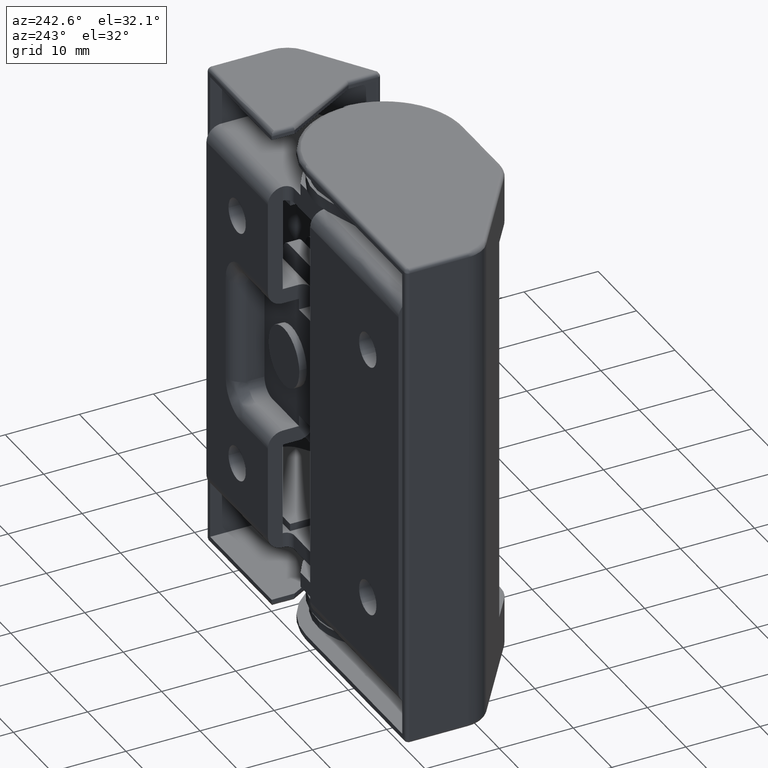
[diagram: clean part render]
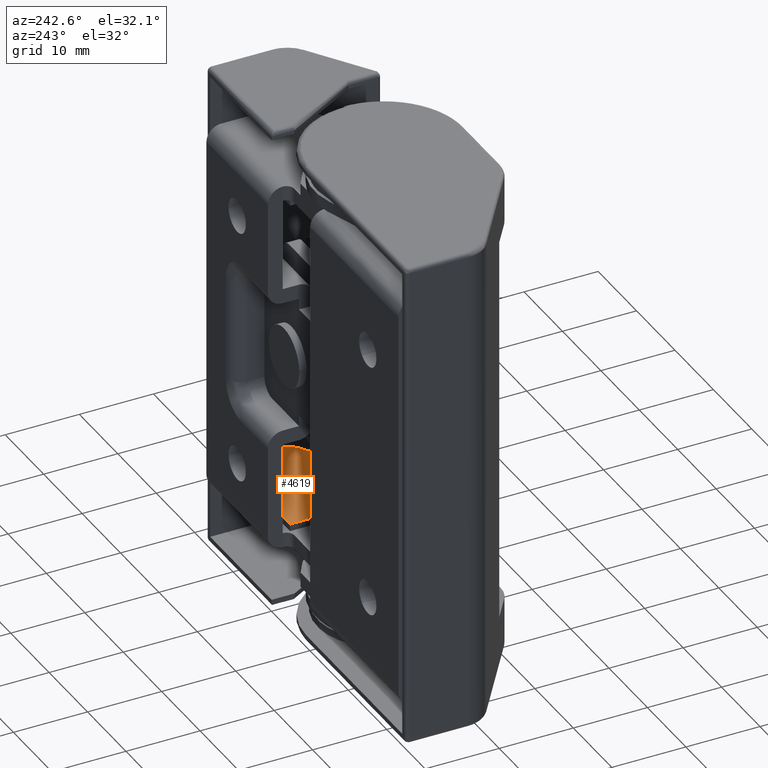
[diagram: same view with one face highlighted and labeled with its STEP entity id]
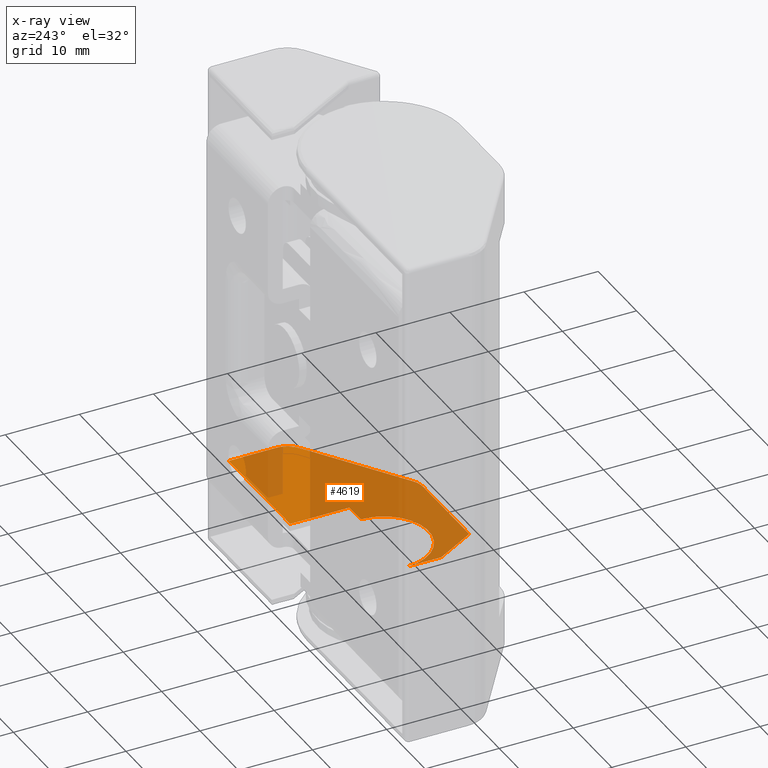
[diagram: x-ray of the same camera — body ghosted, the highlighted face saturated]
A machine part, auxiliary view. The second image highlights one B-rep face of the part: STEP entity #4619.
The next image is the same camera in x-ray: the body ghosted, the highlighted face saturated — about 78% of this face is hidden behind the body in this view.
In plain terms, the highlighted face is a freeform B-spline surface patch.
Its self-contained STEP definition (entity closure, byte-faithful):
#4263=CARTESIAN_POINT('',(-2.886751345948270,-10.000000000002141,11.0));
#4264=VERTEX_POINT('',#4263);
#4270=CARTESIAN_POINT('',(-6.000000000001380,-4.607695154586740,11.0));
#4271=VERTEX_POINT('',#4270);
#4272=CARTESIAN_POINT('',(-2.886751345948270,-10.000000000002141,11.0));
#4273=CARTESIAN_POINT('',(-6.000000000001380,-4.607695154586740,11.0));
#4274=QUASI_UNIFORM_CURVE('',1,(#4272,#4273),.UNSPECIFIED.,.F.,.U.);
#4275=EDGE_CURVE('',#4264,#4271,#4274,.T.);
#4332=CARTESIAN_POINT('',(-6.000000000001380,-7.347638E-016,11.0));
#4333=VERTEX_POINT('',#4332);
#4339=CARTESIAN_POINT('',(5.999999999998620,0.0,11.0));
#4340=VERTEX_POINT('',#4339);
#4341=CARTESIAN_POINT('',(-6.000000000001380,-7.347638E-016,11.0));
#4342=CARTESIAN_POINT('',(-6.000018946884915,-0.343595294055571,11.0));
#4343=CARTESIAN_POINT('',(-5.934507134316537,-1.104447435561617,11.000000000000011));
#4344=CARTESIAN_POINT('',(-5.665421089114768,-2.054139319445492,11.0));
#4345=CARTESIAN_POINT('',(-5.240076025033940,-2.967839806051831,11.0));
#4346=CARTESIAN_POINT('',(-4.656738648494881,-3.852746262832921,11.0));
#4347=CARTESIAN_POINT('',(-3.865623456215885,-4.634192716289061,11.000000000000050));
#4348=CARTESIAN_POINT('',(-2.948933538619309,-5.254790298677482,10.999999999999870));
#4349=CARTESIAN_POINT('',(-2.099810529637234,-5.650061826234797,11.000000000000281));
#4350=CARTESIAN_POINT('',(-1.222203132300316,-5.892875172937856,10.999999999999680));
#4351=CARTESIAN_POINT('',(-0.198833070260764,-6.031971767563624,11.000000000000041));
#4352=CARTESIAN_POINT('',(0.912592809441133,-5.977386253349112,11.000000000000540));
#4353=CARTESIAN_POINT('',(2.054733560386107,-5.668731253736425,10.999999999999121));
#4354=CARTESIAN_POINT('',(3.014593833486496,-5.221946119297532,11.000000000000099));
#4355=CARTESIAN_POINT('',(3.965861518281367,-4.560781711776016,11.000000000001130));
#4356=CARTESIAN_POINT('',(4.761533354489904,-3.714733917671357,10.999999999999540));
#4357=CARTESIAN_POINT('',(5.309335811465456,-2.837597206975266,11.000000000000080));
#4358=CARTESIAN_POINT('',(5.678059588614222,-2.005820878645588,11.000000000000130));
#4359=CARTESIAN_POINT('',(5.934283779372364,-1.079889720412158,10.999999999999609));
#4360=CARTESIAN_POINT('',(6.000041510622296,-0.368146140469203,11.000000000000220));
#4361=CARTESIAN_POINT('',(5.999999999998620,0.0,11.0));
#4362=B_SPLINE_CURVE_WITH_KNOTS('',3,(#4341,#4342,#4343,#4344,#4345,#4346,#4347,#4348,#4349,#4350,#4351,#4352,#4353,#4354,#4355,#4356,#4357,#4358,#4359,#4360,#4361),.UNSPECIFIED.,.F.,.U.,(4,1,1,1,1,1,1,1,1,1,1,1,1,1,1,1,1,1,4),(0.000000020155657,1.030795814829951,2.282548786442028,2.945245528992645,4.049729888910262,5.448742625756310,6.258702070684723,7.363157086495994,8.246760066137568,8.983057460358715,10.455637556366600,11.560129880992820,12.517342707892430,13.621829213661719,15.020838812067110,15.978068013128000,16.714390231040650,17.745237594670542,18.849674194573161),.UNSPECIFIED.);
#4363=EDGE_CURVE('',#4333,#4340,#4362,.T.);
#4386=CARTESIAN_POINT('',(8.999999999998851,0.0,11.0));
#4387=VERTEX_POINT('',#4386);
#4388=CARTESIAN_POINT('',(8.999999999998851,0.0,11.0));
#4389=CARTESIAN_POINT('',(5.999999999998620,0.0,11.0));
#4390=QUASI_UNIFORM_CURVE('',1,(#4388,#4389),.UNSPECIFIED.,.F.,.U.);
#4391=EDGE_CURVE('',#4387,#4340,#4390,.T.);
#4414=CARTESIAN_POINT('',(8.999999999998851,8.0,11.0));
#4415=VERTEX_POINT('',#4414);
#4416=CARTESIAN_POINT('',(8.999999999998851,8.0,11.0));
#4417=CARTESIAN_POINT('',(8.999999999998851,0.0,11.0));
#4418=QUASI_UNIFORM_CURVE('',1,(#4416,#4417),.UNSPECIFIED.,.F.,.U.);
#4419=EDGE_CURVE('',#4415,#4387,#4418,.T.);
#4442=CARTESIAN_POINT('',(24.999999999999101,8.0,11.0));
#4443=VERTEX_POINT('',#4442);
#4444=CARTESIAN_POINT('',(24.999999999999101,8.0,11.0));
#4445=CARTESIAN_POINT('',(8.999999999998851,8.0,11.0));
#4446=QUASI_UNIFORM_CURVE('',1,(#4444,#4445),.UNSPECIFIED.,.F.,.U.);
#4447=EDGE_CURVE('',#4443,#4415,#4446,.T.);
#4553=CARTESIAN_POINT('',(-7.548449939917391,8.899099965112621,11.0));
#4554=CARTESIAN_POINT('',(26.548450771399899,8.899099965112621,11.0));
#4555=CARTESIAN_POINT('',(-7.548449939917390,-10.899100447912501,11.0));
#4556=CARTESIAN_POINT('',(26.548450771399899,-10.899100447912501,11.0));
#4557=B_SPLINE_SURFACE_WITH_KNOTS('',1,1,((#4553,#4555),(#4554,#4556)),.UNSPECIFIED.,.F.,.F.,.U.,(2,2),(2,2),(0.0,34.096900711317303),(0.0,19.798200413025128),.UNSPECIFIED.);
#4558=CARTESIAN_POINT('',(-6.000000000001380,-4.607695154586740,11.0));
#4559=CARTESIAN_POINT('',(-6.000000000001380,-7.347638E-016,11.0));
#4560=QUASI_UNIFORM_CURVE('',1,(#4558,#4559),.UNSPECIFIED.,.F.,.U.);
#4561=EDGE_CURVE('',#4271,#4333,#4560,.T.);
#4562=ORIENTED_EDGE('',*,*,#4561,.F.);
#4563=ORIENTED_EDGE('',*,*,#4275,.F.);
#4564=CARTESIAN_POINT('',(9.091673086802739,-10.000000000002260,11.000000000000121));
#4565=VERTEX_POINT('',#4564);
#4566=CARTESIAN_POINT('',(-2.886751345948270,-10.000000000002141,11.0));
#4567=CARTESIAN_POINT('',(9.091673086802739,-10.000000000002260,11.000000000000121));
#4568=QUASI_UNIFORM_CURVE('',1,(#4566,#4567),.UNSPECIFIED.,.F.,.U.);
#4569=EDGE_CURVE('',#4264,#4565,#4568,.T.);
#4570=ORIENTED_EDGE('',*,*,#4569,.T.);
#4571=CARTESIAN_POINT('',(10.755773675478441,-9.496150883015741,11.000000000000121));
#4572=VERTEX_POINT('',#4571);
#4573=CARTESIAN_POINT('',(9.091673086802739,-10.000000000002260,11.000000000000121));
#4574=CARTESIAN_POINT('',(9.999999999998728,-10.000000000002210,11.0));
#4575=CARTESIAN_POINT('',(10.755773675478430,-9.496150883015728,11.0));
#4583=(BOUNDED_CURVE()B_SPLINE_CURVE(2,(#4573,#4574,#4575),.UNSPECIFIED.,.F.,.U.)CURVE()GEOMETRIC_REPRESENTATION_ITEM()QUASI_UNIFORM_CURVE()RATIONAL_B_SPLINE_CURVE((1.0,0.957092026489051,1.0))REPRESENTATION_ITEM(''));
#4584=EDGE_CURVE('',#4565,#4572,#4583,.T.);
#4585=ORIENTED_EDGE('',*,*,#4584,.T.);
#4586=CARTESIAN_POINT('',(23.664100588674799,-0.890599607549554,11.000000000000121));
#4587=VERTEX_POINT('',#4586);
#4588=CARTESIAN_POINT('',(10.755773675478441,-9.496150883015741,11.000000000000121));
#4589=CARTESIAN_POINT('',(23.664100588674799,-0.890599607549554,11.000000000000121));
#4590=QUASI_UNIFORM_CURVE('',1,(#4588,#4589),.UNSPECIFIED.,.F.,.U.);
#4591=EDGE_CURVE('',#4572,#4587,#4590,.T.);
#4592=ORIENTED_EDGE('',*,*,#4591,.T.);
#4593=CARTESIAN_POINT('',(24.999999999999101,1.605551275463995,11.000000000000121));
#4594=VERTEX_POINT('',#4593);
#4595=CARTESIAN_POINT('',(23.664100588674820,-0.890599607549582,11.000000000000121));
#4596=CARTESIAN_POINT('',(24.999999999999201,-4.727121E-014,11.000000000000119));
#4597=CARTESIAN_POINT('',(24.999999999999201,1.605551275463995,11.000000000000121));
#4605=(BOUNDED_CURVE()B_SPLINE_CURVE(2,(#4595,#4596,#4597),.UNSPECIFIED.,.F.,.U.)CURVE()GEOMETRIC_REPRESENTATION_ITEM()QUASI_UNIFORM_CURVE()RATIONAL_B_SPLINE_CURVE((1.0,0.881674598767937,1.0))REPRESENTATION_ITEM(''));
#4606=EDGE_CURVE('',#4587,#4594,#4605,.T.);
#4607=ORIENTED_EDGE('',*,*,#4606,.T.);
#4608=CARTESIAN_POINT('',(24.999999999999101,1.605551275463995,11.000000000000121));
#4609=CARTESIAN_POINT('',(24.999999999999101,8.0,11.0));
#4610=QUASI_UNIFORM_CURVE('',1,(#4608,#4609),.UNSPECIFIED.,.F.,.U.);
#4611=EDGE_CURVE('',#4594,#4443,#4610,.T.);
#4612=ORIENTED_EDGE('',*,*,#4611,.T.);
#4613=ORIENTED_EDGE('',*,*,#4447,.T.);
#4614=ORIENTED_EDGE('',*,*,#4419,.T.);
#4615=ORIENTED_EDGE('',*,*,#4391,.T.);
#4616=ORIENTED_EDGE('',*,*,#4363,.F.);
#4617=EDGE_LOOP('',(#4562,#4563,#4570,#4585,#4592,#4607,#4612,#4613,#4614,#4615,#4616));
#4618=FACE_OUTER_BOUND('',#4617,.T.);
#4619=ADVANCED_FACE('',(#4618),#4557,.F.);